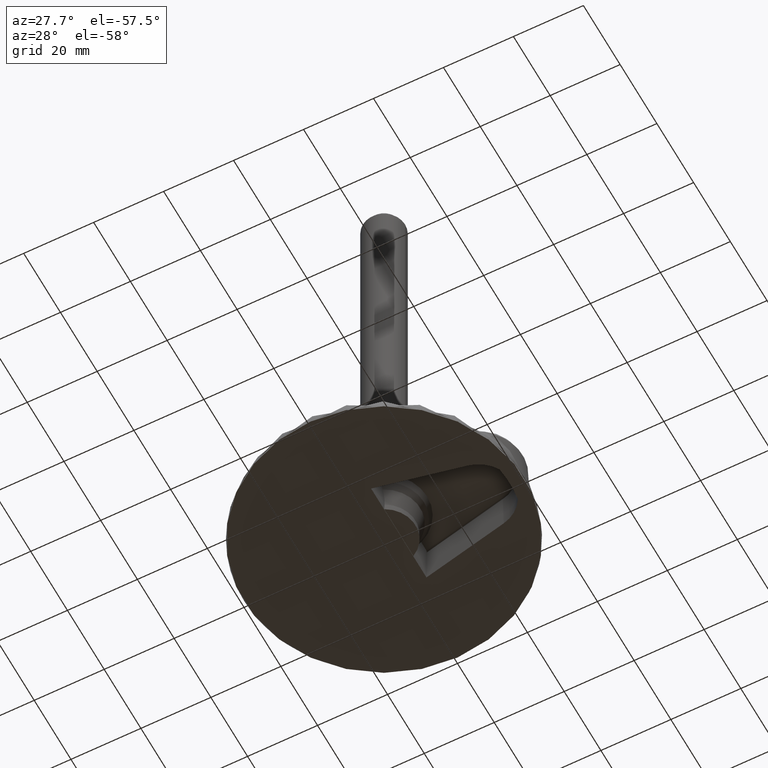
[diagram: clean part render]
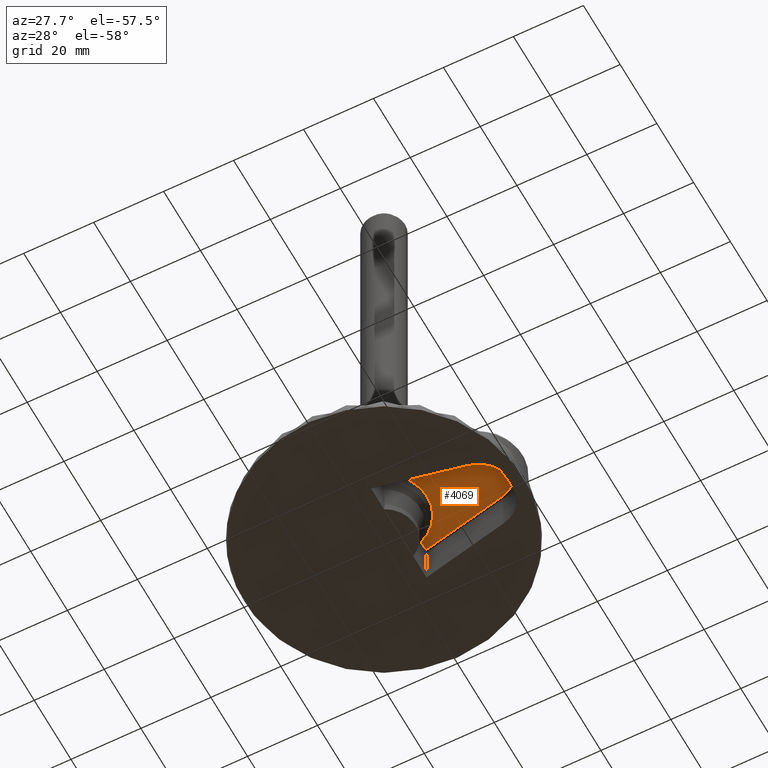
[diagram: same view with one face highlighted and labeled with its STEP entity id]
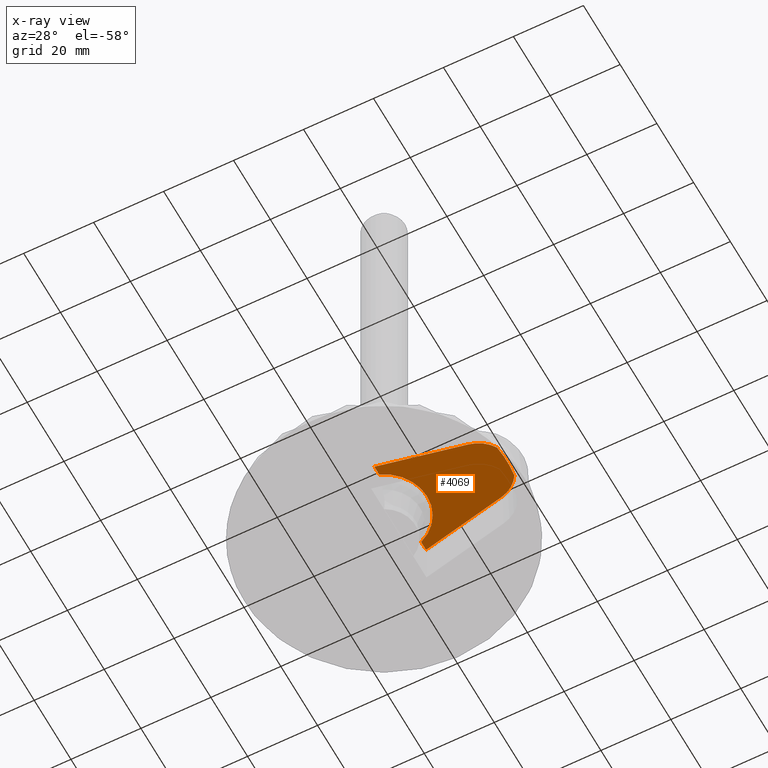
[diagram: x-ray of the same camera — body ghosted, the highlighted face saturated]
A machine part, auxiliary view. The second image highlights one B-rep face of the part: STEP entity #4069.
The next image is the same camera in x-ray: the body ghosted, the highlighted face saturated — about 0% of this face is hidden behind the body in this view.
In plain terms, the highlighted planar face has unit normal (0, 0, -1).
Its self-contained STEP definition (entity closure, byte-faithful):
#3835=CARTESIAN_POINT('',(4.624253297241499,11.430526287300770,11.330000000000000));
#3836=VERTEX_POINT('',#3835);
#3837=CARTESIAN_POINT('',(4.624253297241501,14.086337044512319,11.330000000000000));
#3838=VERTEX_POINT('',#3837);
#3839=CARTESIAN_POINT('',(4.624253297241500,11.430526287300770,11.330000000000000));
#3840=DIRECTION('',(0.0,1.0,0.0));
#3841=VECTOR('',#3840,2.655810757211549);
#3842=LINE('',#3839,#3841);
#3843=EDGE_CURVE('',#3836,#3838,#3842,.T.);
#3946=CARTESIAN_POINT('',(4.624253297241497,-11.430526287300740,11.330000000000000));
#3947=VERTEX_POINT('',#3946);
#3955=CARTESIAN_POINT('',(4.624253297241499,-14.086337044512319,11.330000000000000));
#3956=VERTEX_POINT('',#3955);
#3957=CARTESIAN_POINT('',(4.624253297241500,-14.086337044512319,11.330000000000000));
#3958=DIRECTION('',(0.0,1.0,0.0));
#3959=VECTOR('',#3958,2.655810757211579);
#3960=LINE('',#3957,#3959);
#3961=EDGE_CURVE('',#3956,#3947,#3960,.T.);
#4012=CARTESIAN_POINT('',(36.647328986520030,-15.494970748963578,11.330000000000000));
#4013=DIRECTION('',(0.0,0.0,-1.0));
#4014=DIRECTION('',(-1.0,0.0,0.0));
#4015=AXIS2_PLACEMENT_3D('',#4012,#4013,#4014);
#4016=PLANE('',#4015);
#4017=CARTESIAN_POINT('',(34.806881907984199,4.726827772587559,11.330000000000000));
#4018=VERTEX_POINT('',#4017);
#4019=CARTESIAN_POINT('',(28.897494157746912,8.926900426647128,11.330000000000000));
#4020=VERTEX_POINT('',#4019);
#4021=CARTESIAN_POINT('',(27.000022896699978,0.0,11.330000000000000));
#4022=DIRECTION('',(0.0,0.0,1.0));
#4023=DIRECTION('',(-1.0,0.0,0.0));
#4024=AXIS2_PLACEMENT_3D('',#4021,#4022,#4023);
#4025=CIRCLE('',#4024,9.126332692476847);
#4026=EDGE_CURVE('',#4018,#4020,#4025,.T.);
#4027=ORIENTED_EDGE('',*,*,#4026,.F.);
#4028=CARTESIAN_POINT('',(34.806881907984014,-4.726827772587567,11.330000000000000));
#4029=VERTEX_POINT('',#4028);
#4030=CARTESIAN_POINT('',(0.0,0.0,11.330000000000000));
#4031=DIRECTION('',(0.0,0.0,1.0));
#4032=DIRECTION('',(-1.0,0.0,0.0));
#4033=AXIS2_PLACEMENT_3D('',#4030,#4031,#4032);
#4034=CIRCLE('',#4033,35.126370847955002);
#4035=EDGE_CURVE('',#4029,#4018,#4034,.T.);
#4036=ORIENTED_EDGE('',*,*,#4035,.F.);
#4037=CARTESIAN_POINT('',(28.897494157746941,-8.926900426647126,11.330000000000000));
#4038=VERTEX_POINT('',#4037);
#4039=CARTESIAN_POINT('',(27.000022896699978,0.0,11.330000000000000));
#4040=DIRECTION('',(0.0,0.0,1.0));
#4041=DIRECTION('',(-1.0,0.0,0.0));
#4042=AXIS2_PLACEMENT_3D('',#4039,#4040,#4041);
#4043=CIRCLE('',#4042,9.126332692476847);
#4044=EDGE_CURVE('',#4038,#4029,#4043,.T.);
#4045=ORIENTED_EDGE('',*,*,#4044,.F.);
#4046=CARTESIAN_POINT('',(4.624253297241506,-14.086337044512344,11.330000000000000));
#4047=DIRECTION('',(0.978147600734069,0.207911690816522,0.0));
#4048=VECTOR('',#4047,24.815519500624589);
#4049=LINE('',#4046,#4048);
#4050=EDGE_CURVE('',#3956,#4038,#4049,.T.);
#4051=ORIENTED_EDGE('',*,*,#4050,.F.);
#4052=ORIENTED_EDGE('',*,*,#3961,.T.);
#4053=CARTESIAN_POINT('',(0.0,1.675811E-014,11.330000000000000));
#4054=DIRECTION('',(0.0,0.0,1.0));
#4055=DIRECTION('',(-1.0,0.0,0.0));
#4056=AXIS2_PLACEMENT_3D('',#4053,#4054,#4055);
#4057=CIRCLE('',#4056,12.330476461261442);
#4058=EDGE_CURVE('',#3947,#3836,#4057,.T.);
#4059=ORIENTED_EDGE('',*,*,#4058,.T.);
#4060=ORIENTED_EDGE('',*,*,#3843,.T.);
#4061=CARTESIAN_POINT('',(28.897494157746916,8.926900426647144,11.330000000000000));
#4062=DIRECTION('',(-0.978147600734069,0.207911690816520,0.0));
#4063=VECTOR('',#4062,24.815519500624557);
#4064=LINE('',#4061,#4063);
#4065=EDGE_CURVE('',#4020,#3838,#4064,.T.);
#4066=ORIENTED_EDGE('',*,*,#4065,.F.);
#4067=EDGE_LOOP('',(#4027,#4036,#4045,#4051,#4052,#4059,#4060,#4066));
#4068=FACE_OUTER_BOUND('',#4067,.T.);
#4069=ADVANCED_FACE('',(#4068),#4016,.T.);